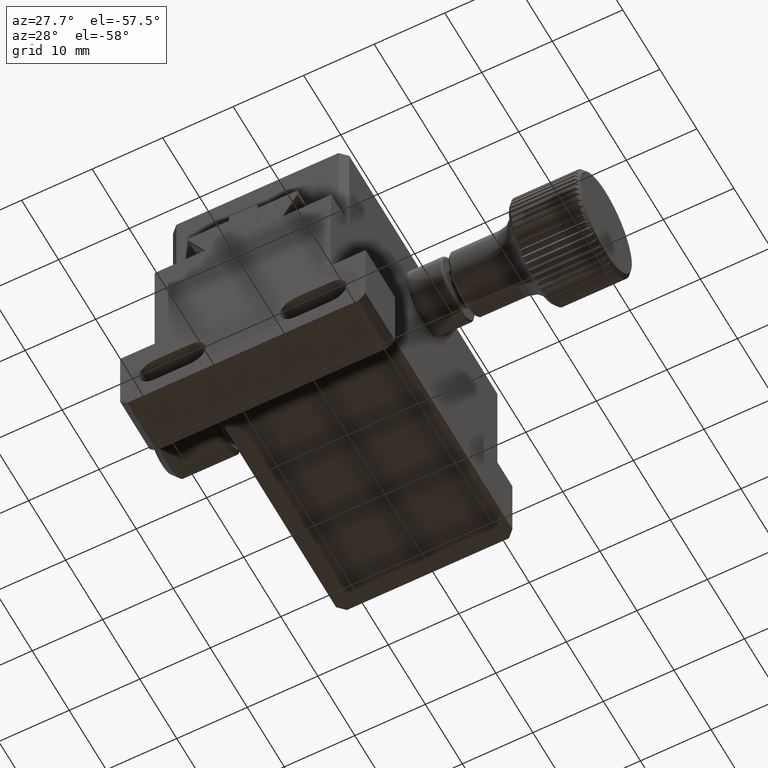
[diagram: clean part render]
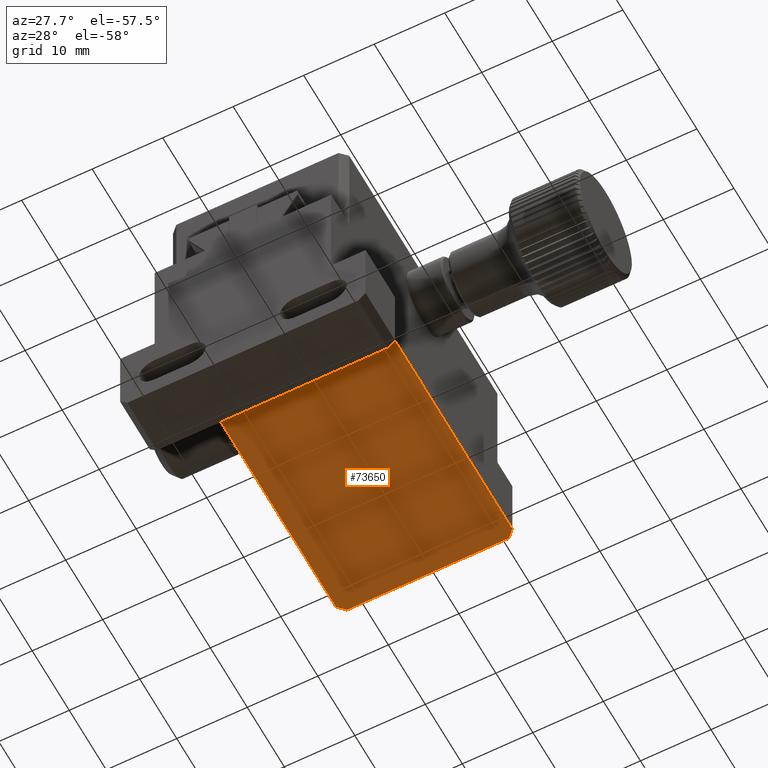
[diagram: same view with one face highlighted and labeled with its STEP entity id]
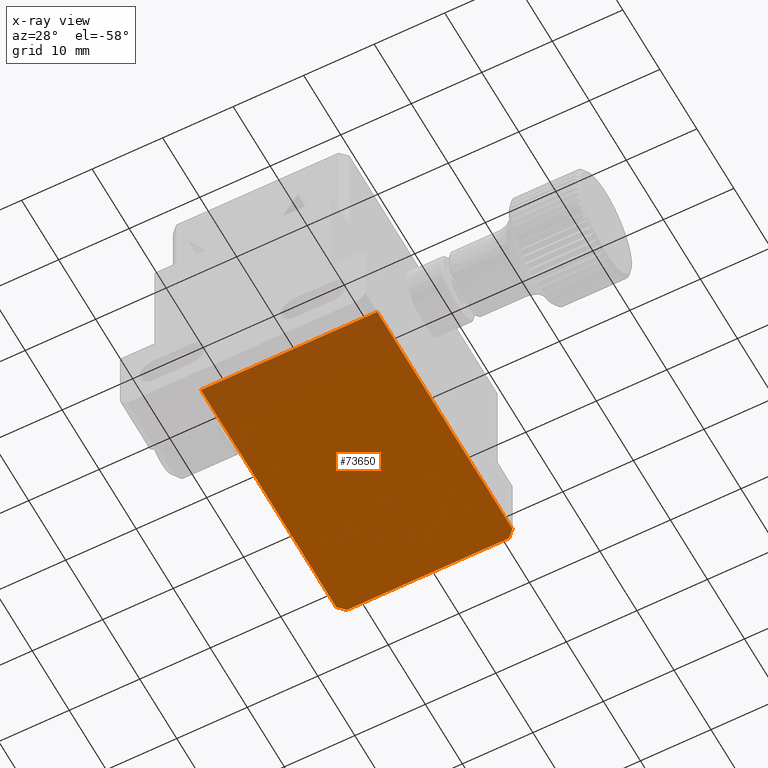
[diagram: x-ray of the same camera — body ghosted, the highlighted face saturated]
A machine part, auxiliary view. The second image highlights one B-rep face of the part: STEP entity #73650.
The next image is the same camera in x-ray: the body ghosted, the highlighted face saturated — about 14% of this face is hidden behind the body in this view.
In plain terms, the highlighted planar face has unit normal (0, -0, 1).
Its self-contained STEP definition (entity closure, byte-faithful):
#1687 = VECTOR ( 'NONE', #110109, 1000.000000000000114 ) ;
#3422 = AXIS2_PLACEMENT_3D ( 'NONE', #72873, #118188, #116987 ) ;
#9210 = VECTOR ( 'NONE', #93862, 1000.000000000000000 ) ;
#18467 = FACE_OUTER_BOUND ( 'NONE', #101024, .T. ) ;
#21717 = VECTOR ( 'NONE', #109938, 1000.000000000000000 ) ;
#22651 = EDGE_CURVE ( 'NONE', #112584, #82413, #60124, .T. ) ;
#22842 = VECTOR ( 'NONE', #108231, 1000.000000000000000 ) ;
#27547 = PLANE ( 'NONE',  #3422 ) ;
#30241 = ORIENTED_EDGE ( 'NONE', *, *, #67578, .F. ) ;
#30943 = ORIENTED_EDGE ( 'NONE', *, *, #80580, .T. ) ;
#35842 = CARTESIAN_POINT ( 'NONE',  ( 75.21116878375734416, 63.63550279078400251, 63.45689688579050625 ) ) ;
#38625 = CARTESIAN_POINT ( 'NONE',  ( 52.21116878375734416, 63.63550279078400251, 63.45689688579050625 ) ) ;
#39202 = VERTEX_POINT ( 'NONE', #108764 ) ;
#42497 = LINE ( 'NONE', #117987, #1687 ) ;
#42906 = CARTESIAN_POINT ( 'NONE',  ( 51.21116878375732995, 62.63550279078398830, 63.45689688579049204 ) ) ;
#45455 = LINE ( 'NONE', #80542, #69220 ) ;
#46385 = EDGE_CURVE ( 'NONE', #98810, #113029, #99193, .T. ) ;
#48680 = ORIENTED_EDGE ( 'NONE', *, *, #80606, .F. ) ;
#54998 = ORIENTED_EDGE ( 'NONE', *, *, #22651, .T. ) ;
#58191 = LINE ( 'NONE', #105302, #9210 ) ;
#60124 = LINE ( 'NONE', #98792, #72056 ) ;
#62951 = ORIENTED_EDGE ( 'NONE', *, *, #46385, .F. ) ;
#67578 = EDGE_CURVE ( 'NONE', #39202, #98810, #58191, .T. ) ;
#69220 = VECTOR ( 'NONE', #91986, 1000.000000000000000 ) ;
#72056 = VECTOR ( 'NONE', #117517, 1000.000000000000114 ) ;
#72873 = CARTESIAN_POINT ( 'NONE',  ( 51.21116878375735126, 63.63550279078400251, 63.45689688579050625 ) ) ;
#73099 = CARTESIAN_POINT ( 'NONE',  ( 51.21116878375735126, 63.63550279078400251, 63.45689688579050625 ) ) ;
#73650 = ADVANCED_FACE ( 'NONE', ( #18467 ), #27547, .F. ) ;
#74700 = CARTESIAN_POINT ( 'NONE',  ( 76.21116878375734416, 26.13550279078399896, 63.45689688579012255 ) ) ;
#80542 = CARTESIAN_POINT ( 'NONE',  ( 51.21116878375735126, 63.63550279078400251, 63.45689688579050625 ) ) ;
#80580 = EDGE_CURVE ( 'NONE', #92695, #113029, #42497, .T. ) ;
#80606 = EDGE_CURVE ( 'NONE', #112584, #39202, #45455, .T. ) ;
#82413 = VERTEX_POINT ( 'NONE', #38625 ) ;
#82743 = CARTESIAN_POINT ( 'NONE',  ( 76.21116878375734416, 62.63550279078395988, 63.45689688579049204 ) ) ;
#91986 = DIRECTION ( 'NONE',  ( 0.000000000000000000, -1.000000000000000000, -1.047444401652940007E-14 ) ) ;
#92695 = VERTEX_POINT ( 'NONE', #35842 ) ;
#93862 = DIRECTION ( 'NONE',  ( 1.000000000000000000, 1.282749433769087582E-30, -1.224646799147353207E-16 ) ) ;
#94796 = ORIENTED_EDGE ( 'NONE', *, *, #97641, .F. ) ;
#97408 = CARTESIAN_POINT ( 'NONE',  ( 76.21116878375734416, 63.63550279078400251, 63.45689688579050625 ) ) ;
#97641 = EDGE_CURVE ( 'NONE', #92695, #82413, #119005, .T. ) ;
#98792 = CARTESIAN_POINT ( 'NONE',  ( 52.21116878375735126, 63.63550279078400251, 63.45689688579049204 ) ) ;
#98810 = VERTEX_POINT ( 'NONE', #74700 ) ;
#99193 = LINE ( 'NONE', #97408, #22842 ) ;
#101024 = EDGE_LOOP ( 'NONE', ( #54998, #94796, #30943, #62951, #30241, #48680 ) ) ;
#105302 = CARTESIAN_POINT ( 'NONE',  ( 51.21116878375735126, 26.13550279078399896, 63.45689688579012255 ) ) ;
#108231 = DIRECTION ( 'NONE',  ( -0.000000000000000000, 1.000000000000000000, 1.047444401652940007E-14 ) ) ;
#108764 = CARTESIAN_POINT ( 'NONE',  ( 51.21116878375735126, 26.13550279078399896, 63.45689688579012255 ) ) ;
#109938 = DIRECTION ( 'NONE',  ( -1.000000000000000000, -1.282749433769087582E-30, 1.224646799147353207E-16 ) ) ;
#110109 = DIRECTION ( 'NONE',  ( 0.7071067811865474617, -0.7071067811865474617, 0.000000000000000000 ) ) ;
#112584 = VERTEX_POINT ( 'NONE', #42906 ) ;
#113029 = VERTEX_POINT ( 'NONE', #82743 ) ;
#116987 = DIRECTION ( 'NONE',  ( 0.000000000000000000, -1.000000000000000000, -1.047444401652940007E-14 ) ) ;
#117517 = DIRECTION ( 'NONE',  ( 0.7071067811865474617, 0.7071067811865474617, 0.000000000000000000 ) ) ;
#117987 = CARTESIAN_POINT ( 'NONE',  ( 75.21116878375734416, 63.63550279078400251, 63.45689688579050625 ) ) ;
#118188 = DIRECTION ( 'NONE',  ( 1.224646799147353207E-16, -1.047444401652940007E-14, 1.000000000000000000 ) ) ;
#119005 = LINE ( 'NONE', #73099, #21717 ) ;